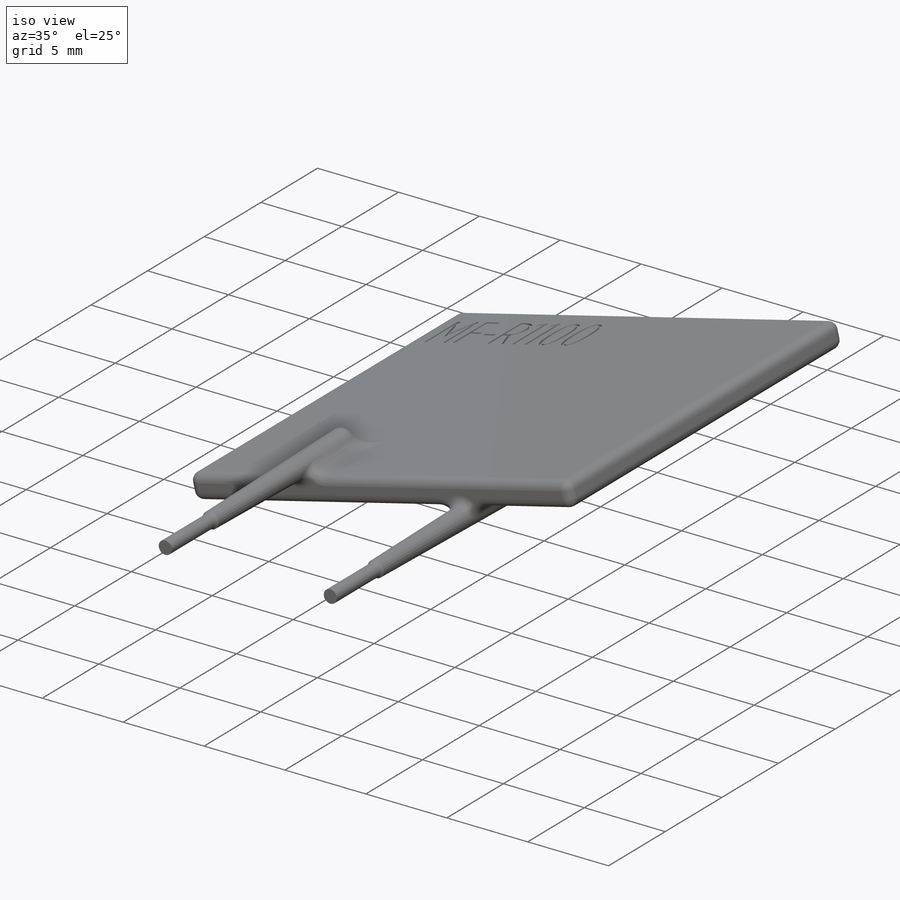
[diagram: iso view]
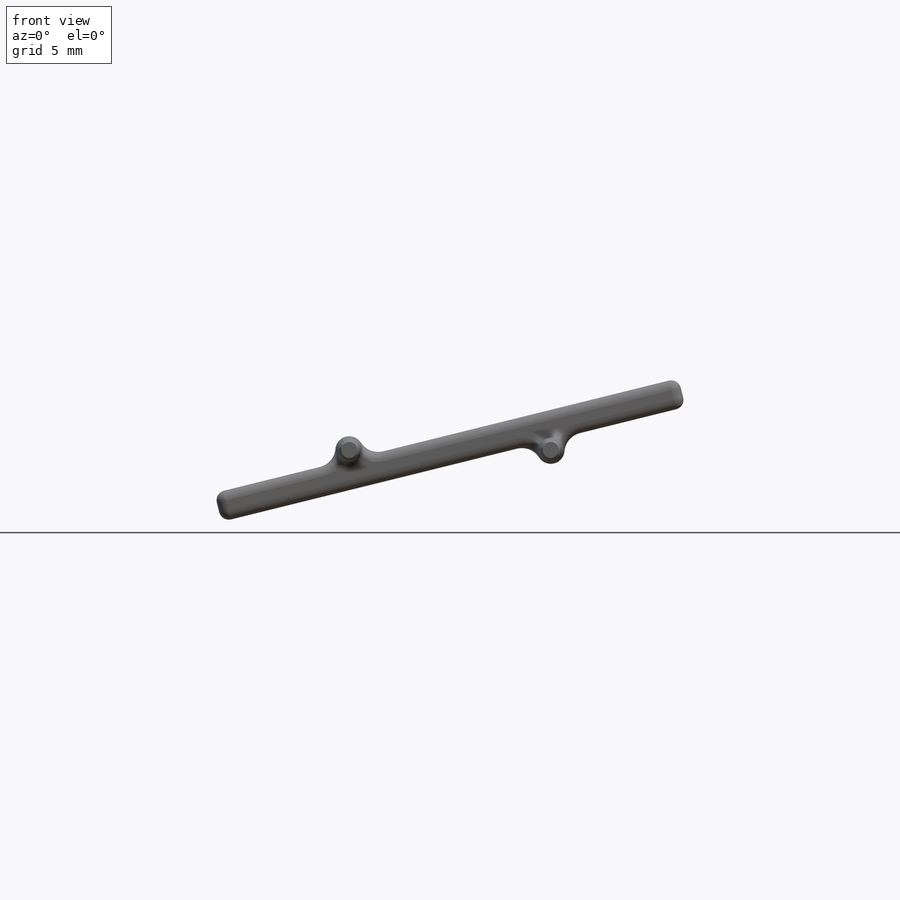
[diagram: front view]
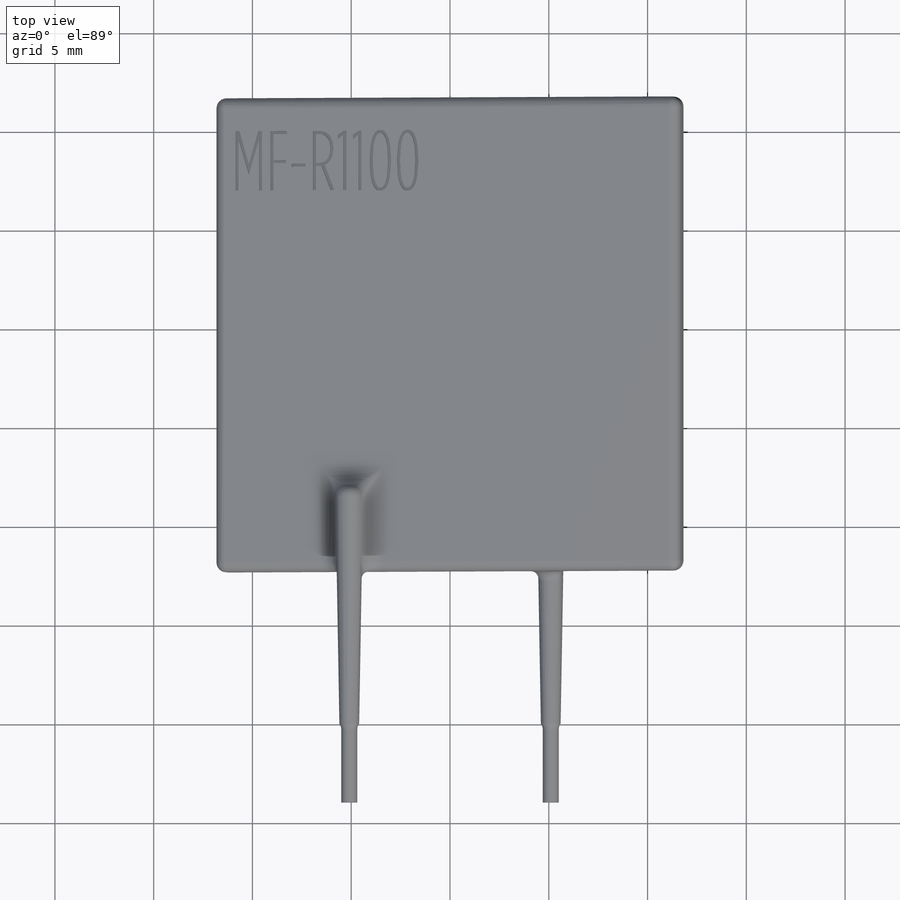
[diagram: top view]
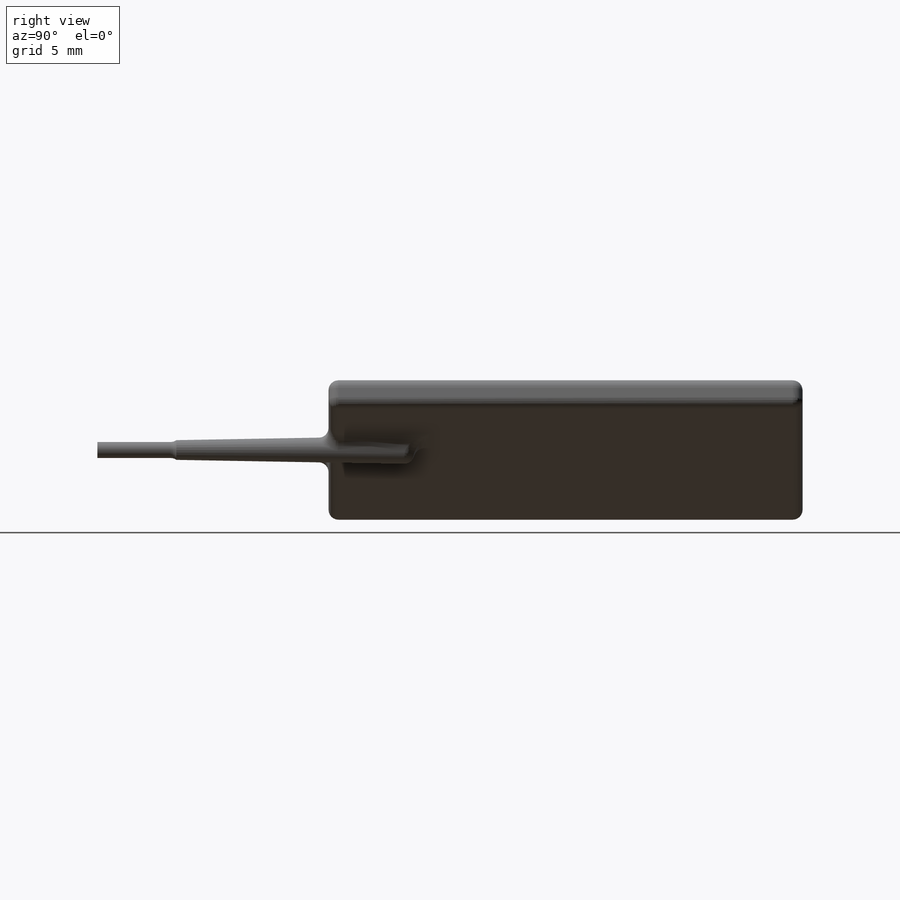
[diagram: right view]
SOLIDWORKS PART (.sldprt)
format: sldprt  version: not decoded by parser v0  size: 527,360 bytes
history: native  units: mm
features: fillet x5, plane x4, sketch x4, extrude x3, material x1, cut_extrude x1 (+9 scaffold rows collapsed)
feature tree (27):
  scaffold x9  (default folders/planes/origin — collapsed)
  material  "Material <not specified>"
  plane  "Спереди"
  plane  "Сверху"
  plane  "Справа"
  sketch  "Эскиз1"  dims[D1=0.81mm D2=10.2mm]
  extrude  "Бобышка-Вытянуть1"  Depth=4mm
  sketch  "Эскиз2"  dims[D1=1.0mm]
  extrude  "Бобышка-Вытянуть2"  Depth=12mm
  plane  "Плоскость1"  Offset=7.7mm
  sketch  "Эскиз3"  dims[D1=24.2mm D2=1.5mm]
  extrude  "Бобышка-Вытянуть3"  Depth=24mm
  fillet  "Скругление1"  Radius=1mm
  fillet  "Скругление2"  Radius=1mm
  fillet  "Скругление4"  Radius=0.5mm
  fillet  "Скругление5"  Radius=0.5mm
  fillet  "Скругление6"  Radius=0.5mm
  sketch  "Эскиз4"
  cut_extrude  "Вырез-Вытянуть1"  Depth=0.1mm
decode coverage: 12 of 13 modeling features carry decoded parameters
note: suppression state not decoded; provenance and decode notes live in map.json
